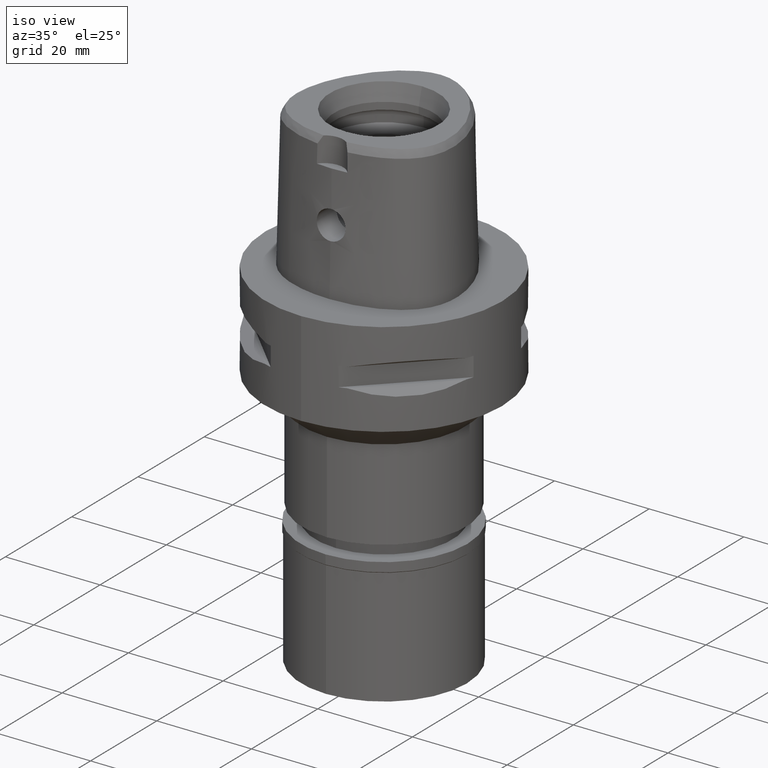
[diagram: clean part render]
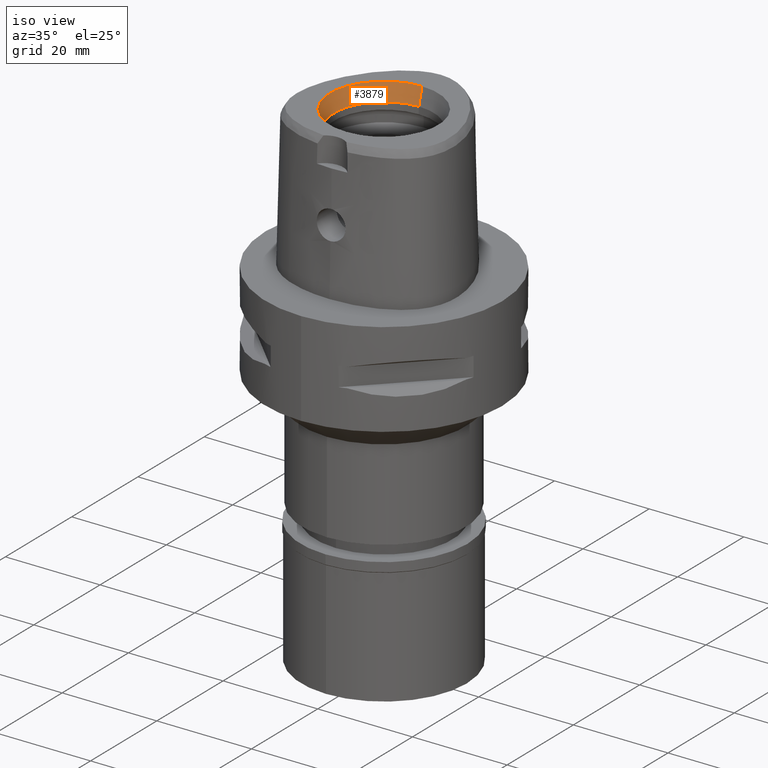
[diagram: same view with one face highlighted and labeled with its STEP entity id]
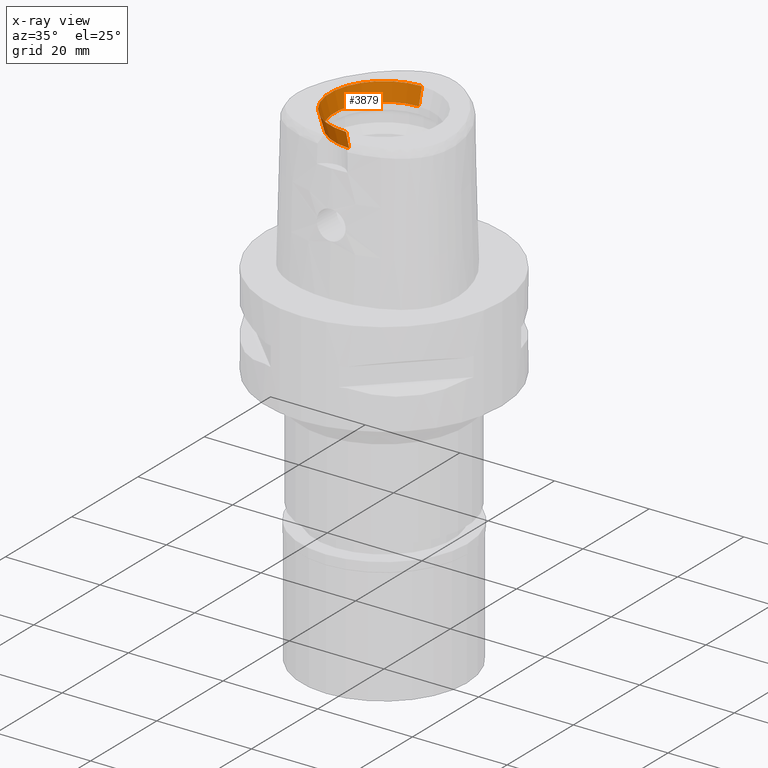
[diagram: x-ray of the same camera — body ghosted, the highlighted face saturated]
A machine part, iso view. The second image highlights one B-rep face of the part: STEP entity #3879.
The next image is the same camera in x-ray: the body ghosted, the highlighted face saturated — about 0% of this face is hidden behind the body in this view.
In plain terms, the highlighted conical surface has half-angle 15 deg.
Its self-contained STEP definition (entity closure, byte-faithful):
#75 = CIRCLE ( 'NONE', #1825, 11.43782217350000074 ) ;
#97 = CIRCLE ( 'NONE', #2634, 10.50000000000000000 ) ;
#100 = DIRECTION ( 'NONE',  ( 0.0000000000000000000, 1.000000000000000000, 0.0000000000000000000 ) ) ;
#164 = DIRECTION ( 'NONE',  ( 0.0000000000000000000, 1.000000000000000000, 0.0000000000000000000 ) ) ;
#232 = ORIENTED_EDGE ( 'NONE', *, *, #4445, .F. ) ;
#345 = VECTOR ( 'NONE', #3548, 1000.000000000000114 ) ;
#383 = VERTEX_POINT ( 'NONE', #2521 ) ;
#745 = VERTEX_POINT ( 'NONE', #2732 ) ;
#888 = EDGE_CURVE ( 'NONE', #2253, #383, #3942, .T. ) ;
#945 = CONICAL_SURFACE ( 'NONE', #1739, 10.96891108674999948, 0.2617993877991000029 ) ;
#1011 = CARTESIAN_POINT ( 'NONE',  ( 0.0000000000000000000, 1.570609519905999910E-14, 26.50000000000000000 ) ) ;
#1194 = CARTESIAN_POINT ( 'NONE',  ( 0.0000000000000000000, 1.570609519905999910E-14, 28.25000000000000000 ) ) ;
#1480 = CARTESIAN_POINT ( 'NONE',  ( 0.0000000000000000000, 10.50000000000000000, 26.50000000000000000 ) ) ;
#1739 = AXIS2_PLACEMENT_3D ( 'NONE', #1194, #1987, #100 ) ;
#1825 = AXIS2_PLACEMENT_3D ( 'NONE', #3314, #2539, #3590 ) ;
#1922 = EDGE_LOOP ( 'NONE', ( #4020, #232, #2695, #2276 ) ) ;
#1987 = DIRECTION ( 'NONE',  ( 0.0000000000000000000, 0.0000000000000000000, 1.000000000000000000 ) ) ;
#2253 = VERTEX_POINT ( 'NONE', #1480 ) ;
#2276 = ORIENTED_EDGE ( 'NONE', *, *, #3677, .T. ) ;
#2441 = EDGE_CURVE ( 'NONE', #4459, #745, #4876, .T. ) ;
#2521 = CARTESIAN_POINT ( 'NONE',  ( 0.0000000000000000000, 11.43782217350000074, 30.00000000000000000 ) ) ;
#2539 = DIRECTION ( 'NONE',  ( 0.0000000000000000000, 0.0000000000000000000, 1.000000000000000000 ) ) ;
#2634 = AXIS2_PLACEMENT_3D ( 'NONE', #1011, #4676, #164 ) ;
#2695 = ORIENTED_EDGE ( 'NONE', *, *, #888, .T. ) ;
#2732 = CARTESIAN_POINT ( 'NONE',  ( 0.0000000000000000000, -11.43782217350000074, 30.00000000000000000 ) ) ;
#2844 = CARTESIAN_POINT ( 'NONE',  ( 0.0000000000000000000, -10.50000000000000000, 26.50000000000000000 ) ) ;
#3037 = DIRECTION ( 'NONE',  ( 0.0000000000000000000, -0.2588190451023999472, 0.9659258262891006197 ) ) ;
#3314 = CARTESIAN_POINT ( 'NONE',  ( 0.0000000000000000000, 1.570609519905999910E-14, 30.00000000000000000 ) ) ;
#3401 = CARTESIAN_POINT ( 'NONE',  ( 0.0000000000000000000, -10.50000000000000000, 26.50000000000000000 ) ) ;
#3548 = DIRECTION ( 'NONE',  ( 0.0000000000000000000, 0.2588190451023999472, 0.9659258262891006197 ) ) ;
#3590 = DIRECTION ( 'NONE',  ( 0.0000000000000000000, 1.000000000000000000, 0.0000000000000000000 ) ) ;
#3677 = EDGE_CURVE ( 'NONE', #383, #745, #75, .T. ) ;
#3827 = FACE_OUTER_BOUND ( 'NONE', #1922, .T. ) ;
#3879 = ADVANCED_FACE ( 'NONE', ( #3827 ), #945, .F. ) ;
#3922 = CARTESIAN_POINT ( 'NONE',  ( 0.0000000000000000000, 10.50000000000000000, 26.50000000000000000 ) ) ;
#3942 = LINE ( 'NONE', #3922, #345 ) ;
#4020 = ORIENTED_EDGE ( 'NONE', *, *, #2441, .F. ) ;
#4327 = VECTOR ( 'NONE', #3037, 1000.000000000000114 ) ;
#4445 = EDGE_CURVE ( 'NONE', #2253, #4459, #97, .T. ) ;
#4459 = VERTEX_POINT ( 'NONE', #2844 ) ;
#4676 = DIRECTION ( 'NONE',  ( 0.0000000000000000000, 0.0000000000000000000, 1.000000000000000000 ) ) ;
#4876 = LINE ( 'NONE', #3401, #4327 ) ;